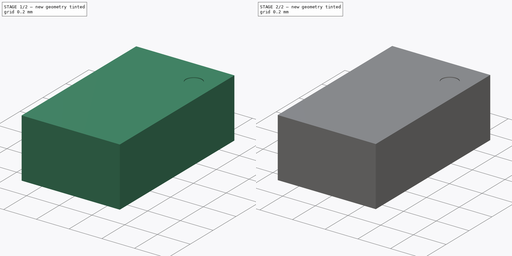
[diagram: build sequence overview — one tinted view per stage of 2, left to right]
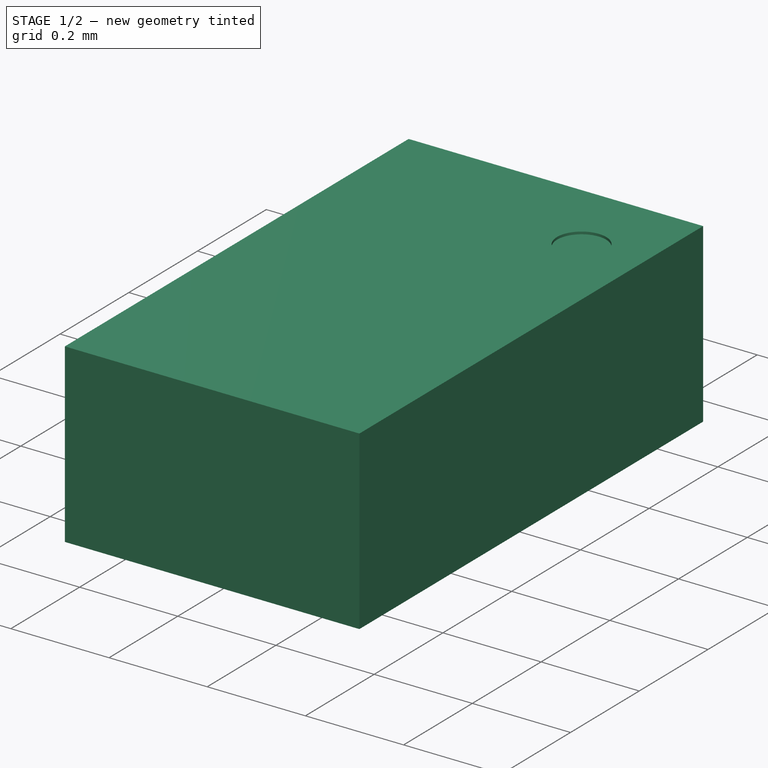
[diagram: stage 1 of 2 — iso view after this stage's code; geometry added in this stage tinted green]
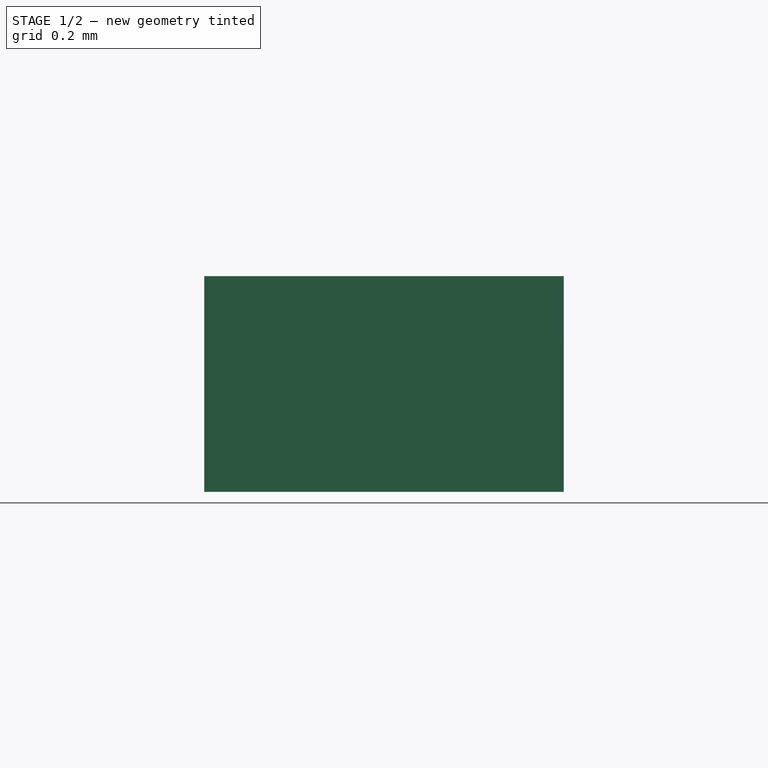
[diagram: stage 1 of 2 — front view after this stage's code; geometry added in this stage tinted green]
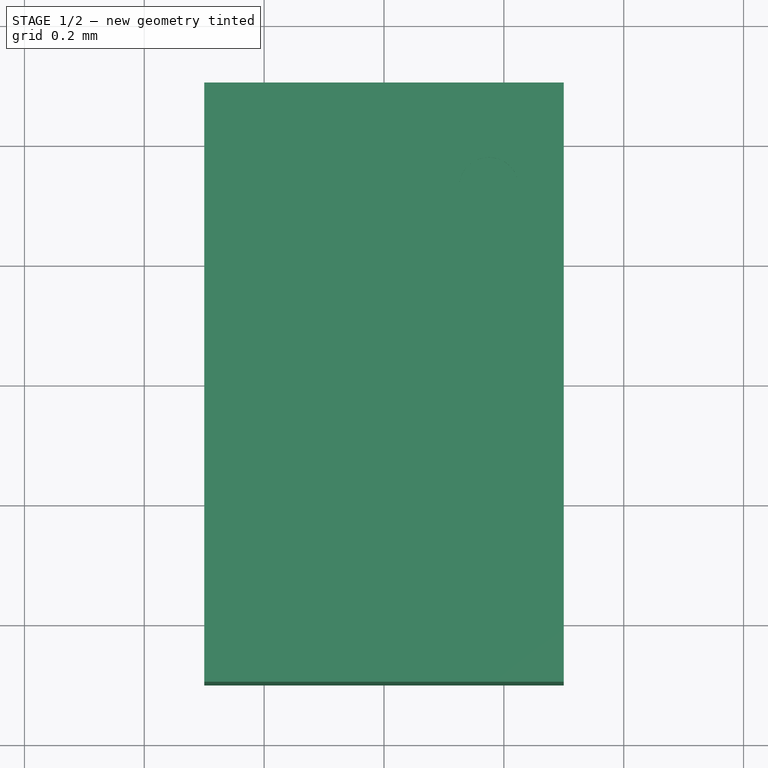
[diagram: stage 1 of 2 — top view after this stage's code; geometry added in this stage tinted green]
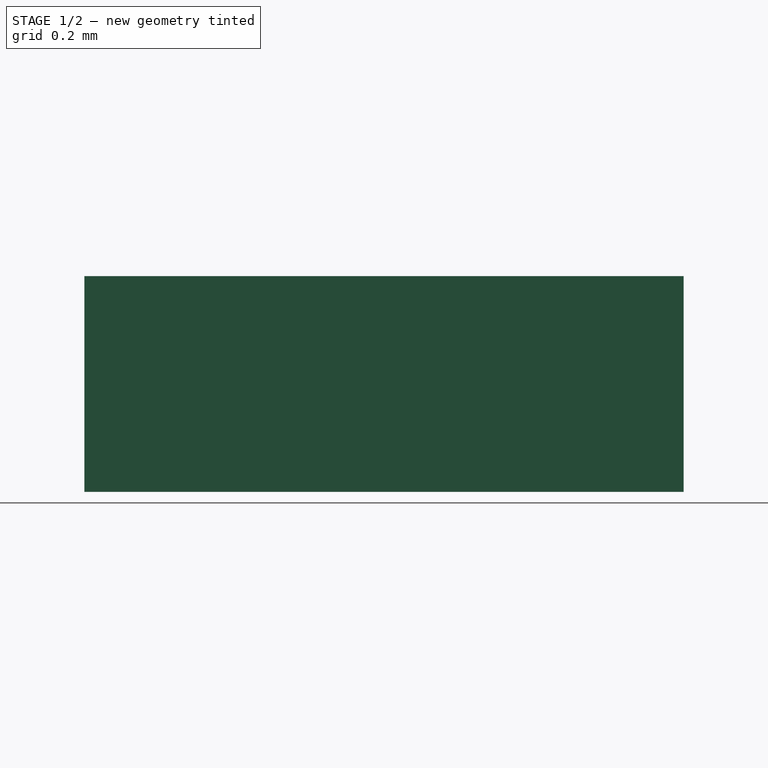
[diagram: stage 1 of 2 — right view after this stage's code; geometry added in this stage tinted green]
FCSTD DOCUMENT  (FreeCAD 0.20R29603 (Git))
Label: XFDFN-3
License: All rights reserved
LicenseURL: http://en.wikipedia.org/wiki/All_rights_reserved
objects: Sketcher::SketchObject×3, PartDesign::Pad×2, PartDesign::Pocket×1, PartDesign::Body×1
note: 10 computed .brp shape members not serialized (recipe doc carries the construction recipe); baked Part::Feature solids carry a one-line shape summary decoded from their .brp

FEATURE [Sketcher::SketchObject] Sketch
  FullyConstrained = true
  MapMode = 5
  Support = -> [XY_Plane]
  sketch-geometry (5):
    g0: LineSegment StartX=-0.3 StartY=0.5 StartZ=0 EndX=-0.3 EndY=-0.5 EndZ=0
    g1: LineSegment StartX=-0.3 StartY=-0.5 StartZ=0 EndX=0.3 EndY=-0.5 EndZ=0
    g2: LineSegment StartX=0.3 StartY=-0.5 StartZ=0 EndX=0.3 EndY=0.5 EndZ=0
    g3: LineSegment StartX=0.3 StartY=0.5 StartZ=0 EndX=-0.3 EndY=0.5 EndZ=0
    g4: GeomPoint X=0 Y=0 Z=0
  constraints (12):
    c: Coincident(g0,g1)
    c: Coincident(g1,g2)
    c: Coincident(g2,g3)
    c: Coincident(g3,g0)
    c: Horizontal(g1)
    c: Horizontal(g3)
    c: Vertical(g0)
    c: Vertical(g2)
    c: Symmetric(g1,g0,g4)
    c: Coincident(g4,g-1)
    c: DistanceX(g3,g3) = 0.6
    c: DistanceY(g0,g0) = 1
FEATURE [PartDesign::Pad] Pad
  Direction = (0,0,1)
  Length = 0.36
  Length2 = 10
  Profile = -> Sketch
  ReferenceAxis = -> Sketch [N_Axis]
  Type = 0
FEATURE [Sketcher::SketchObject] Sketch001
  FullyConstrained = true
  MapMode = 5
  Placement = pos=(0,0,0.36) rot=(0,0,1;0rad)
  Support = -> [Pad]
  sketch-geometry (1):
    g0: Circle CenterX=0.175 CenterY=0.325 CenterZ=0 NormalX=0 NormalY=0 NormalZ=1 AngleXU=0 Radius=0.05
  constraints (3):
    c: DistanceX(g-1,g0) = 0.175
    c: DistanceY(g-1,g0) = 0.325
    c: Radius(g0) = 0.05
FEATURE [PartDesign::Pocket] Pocket
  BaseFeature = -> Pad
  Direction = (0,0,-1)
  Length = 0.005
  Length2 = 5
  Profile = -> Sketch001
  ReferenceAxis = -> Sketch001 [N_Axis]
  Type = 0
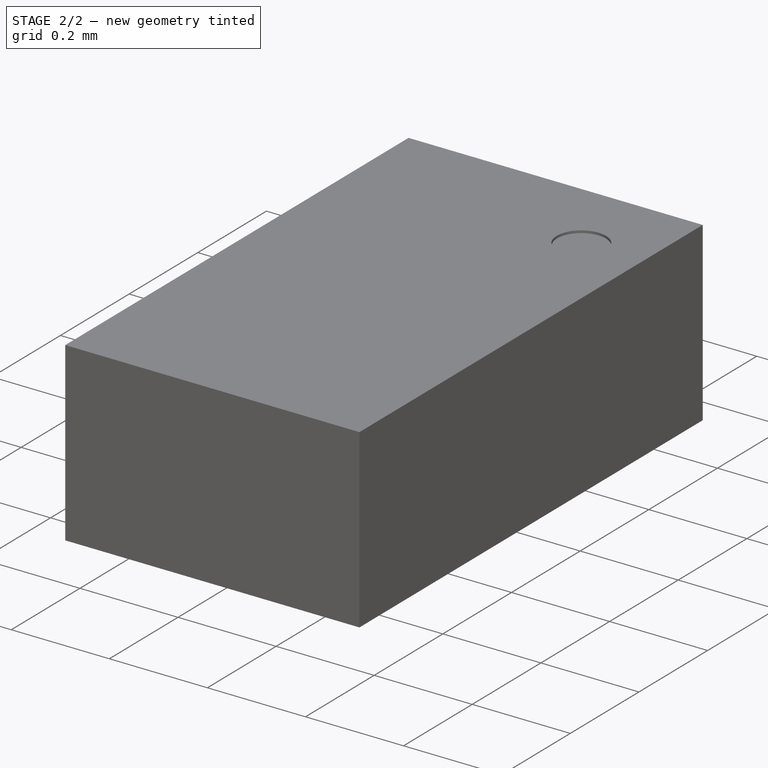
[diagram: stage 2 of 2 — iso view after this stage's code; geometry added in this stage tinted green]
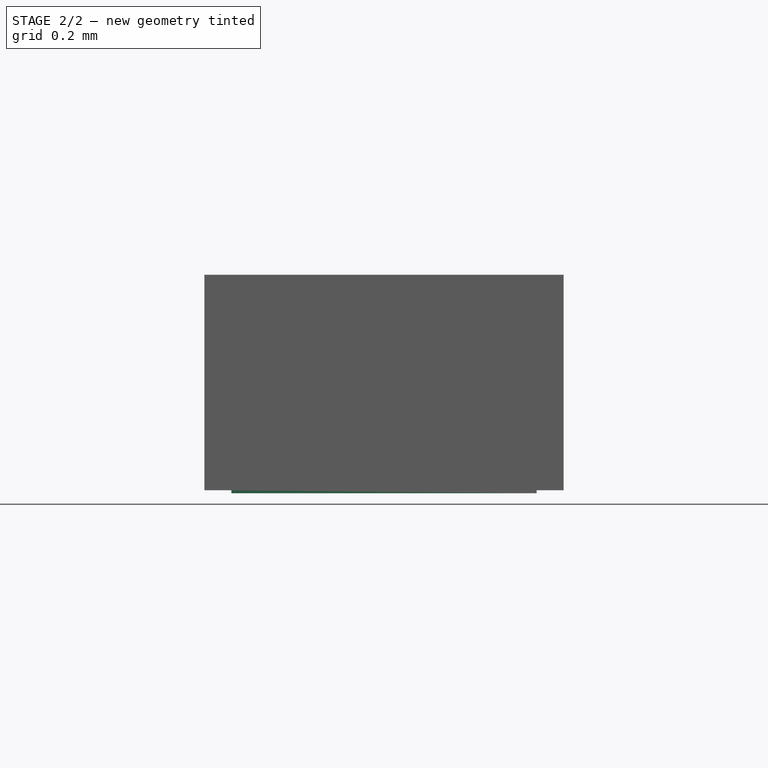
[diagram: stage 2 of 2 — front view after this stage's code; geometry added in this stage tinted green]
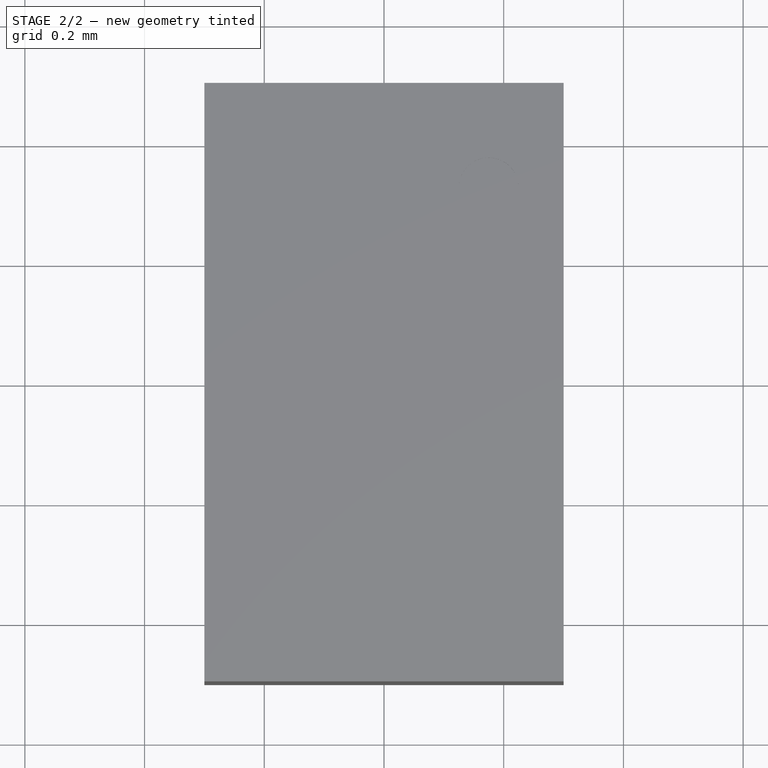
[diagram: stage 2 of 2 — top view after this stage's code; geometry added in this stage tinted green]
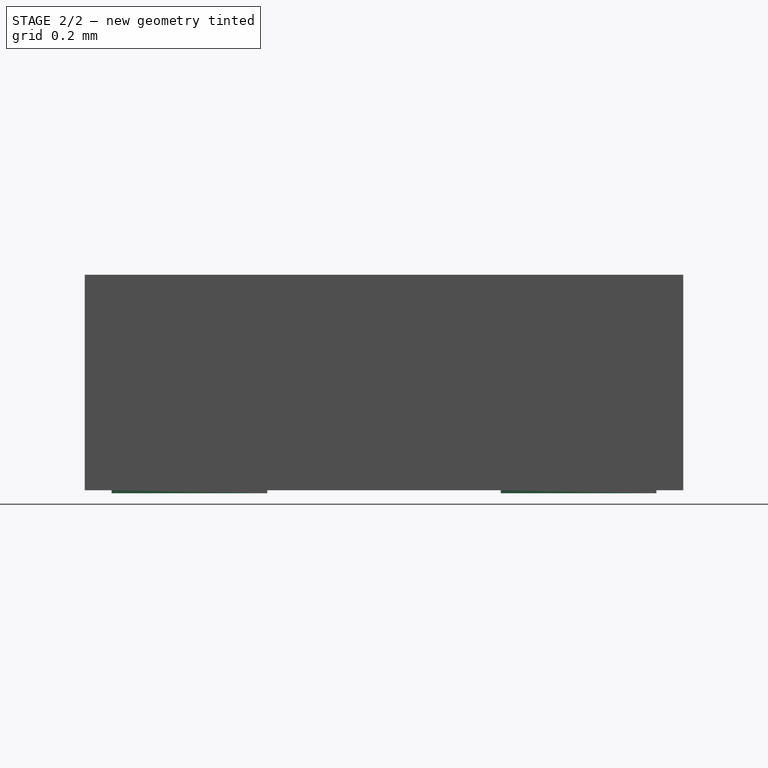
[diagram: stage 2 of 2 — right view after this stage's code; geometry added in this stage tinted green]
FEATURE [Sketcher::SketchObject] Sketch002
  FullyConstrained = true
  MapMode = 5
  Placement = pos=(0,0,0) rot=(1,0,0;3.14159rad)
  Support = -> [Pocket]
  sketch-geometry (15):
    g0: LineSegment StartX=0.255 StartY=-0.455 StartZ=0 EndX=0.255 EndY=-0.195 EndZ=0
    g1: LineSegment StartX=0.255 StartY=-0.195 StartZ=0 EndX=0.095 EndY=-0.195 EndZ=0
    g2: LineSegment StartX=0.095 StartY=-0.195 StartZ=0 EndX=0.095 EndY=-0.455 EndZ=0
    g3: LineSegment StartX=0.095 StartY=-0.455 StartZ=0 EndX=0.255 EndY=-0.455 EndZ=0
    g4: GeomPoint X=0.175 Y=-0.325 Z=0
    g5: LineSegment StartX=0.255 StartY=0.195 StartZ=0 EndX=0.255 EndY=0.455 EndZ=0
    g6: LineSegment StartX=0.255 StartY=0.455 StartZ=0 EndX=-0.255 EndY=0.455 EndZ=0
    g7: LineSegment StartX=-0.255 StartY=0.455 StartZ=0 EndX=-0.255 EndY=0.195 EndZ=0
    g8: LineSegment StartX=-0.255 StartY=0.195 StartZ=0 EndX=0.255 EndY=0.195 EndZ=0
    g9: GeomPoint X=0 Y=0.325 Z=0
    g10: LineSegment StartX=-0.255 StartY=-0.455 StartZ=0 EndX=-0.255 EndY=-0.195 EndZ=0
    g11: LineSegment StartX=-0.255 StartY=-0.195 StartZ=0 EndX=-0.095 EndY=-0.195 EndZ=0
    g12: LineSegment StartX=-0.095 StartY=-0.195 StartZ=0 EndX=-0.095 EndY=-0.455 EndZ=0
    g13: LineSegment StartX=-0.095 StartY=-0.455 StartZ=0 EndX=-0.255 EndY=-0.455 EndZ=0
    g14: GeomPoint X=-0.175 Y=-0.325 Z=0
  constraints (38):
    c: Coincident(g0,g1)
    c: Coincident(g1,g2)
    c: Coincident(g2,g3)
    c: Coincident(g3,g0)
    c: Horizontal(g1)
    c: Horizontal(g3)
    c: Vertical(g0)
    c: Vertical(g2)
    c: Symmetric(g1,g0,g4)
    c: Coincident(g5,g6)
    c: Coincident(g6,g7)
    c: Coincident(g7,g8)
    c: Coincident(g8,g5)
    c: Horizontal(g6)
    c: Horizontal(g8)
    c: Vertical(g5)
    c: Vertical(g7)
    c: Symmetric(g6,g5,g9)
    c: DistanceX(g-1,g4) = 0.175
    c: DistanceX(g3,g3) = 0.16
    c: PointOnObject(g9,g-2)
    c: DistanceY(g-1,g9) = 0.325
    c: DistanceX(g8,g8) = 0.51
    c: DistanceY(g5,g5) = 0.26
    c: DistanceY(g0,g0) = 0.26
    c: Coincident(g10,g11)
    c: Coincident(g11,g12)
    c: Coincident(g12,g13)
    c: Coincident(g13,g10)
    c: Horizontal(g11)
    c: Horizontal(g13)
    c: Vertical(g10)
    c: Vertical(g12)
    c: Symmetric(g11,g10,g14)
    c: Equal(g10,g2)
    c: Equal(g11,g1)
    c: DistanceY(g4,g-1) = 0.325
    c: Symmetric(g14,g4,g-2)
FEATURE [PartDesign::Pad] Pad001
  BaseFeature = -> Pocket
  Direction = (0,0,-1)
  Length = 0.005
  Length2 = 10
  Profile = -> Sketch002
  ReferenceAxis = -> Sketch002 [N_Axis]
  Type = 0
FEATURE [PartDesign::Body] Body
  Group = -> [Sketch,Pad,Sketch001,Pocket,Sketch002,Pad001]
  Origin = -> Origin
  Tip = -> Pad001
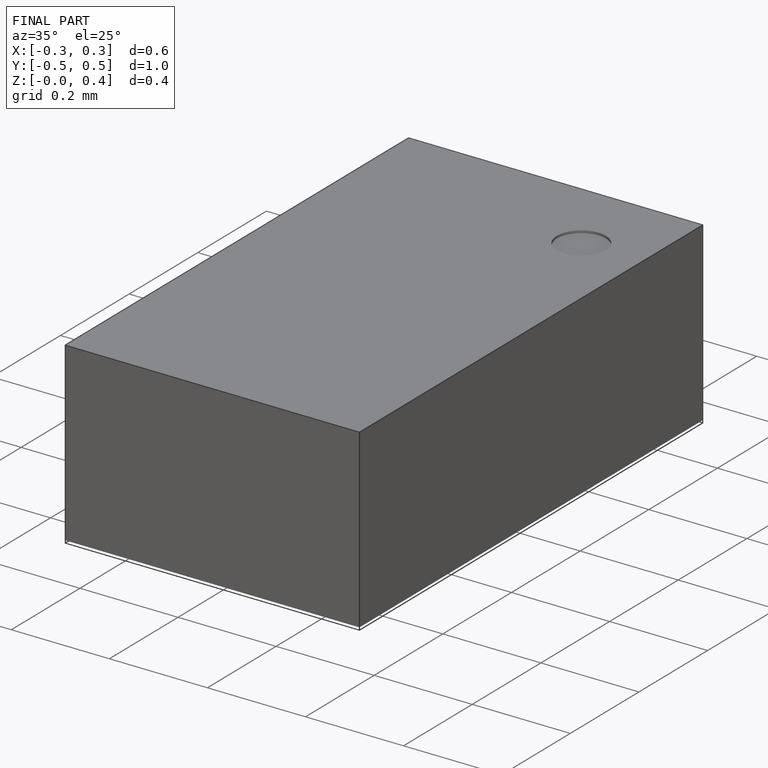
[diagram: finished part — iso view with bounding-box wireframe]
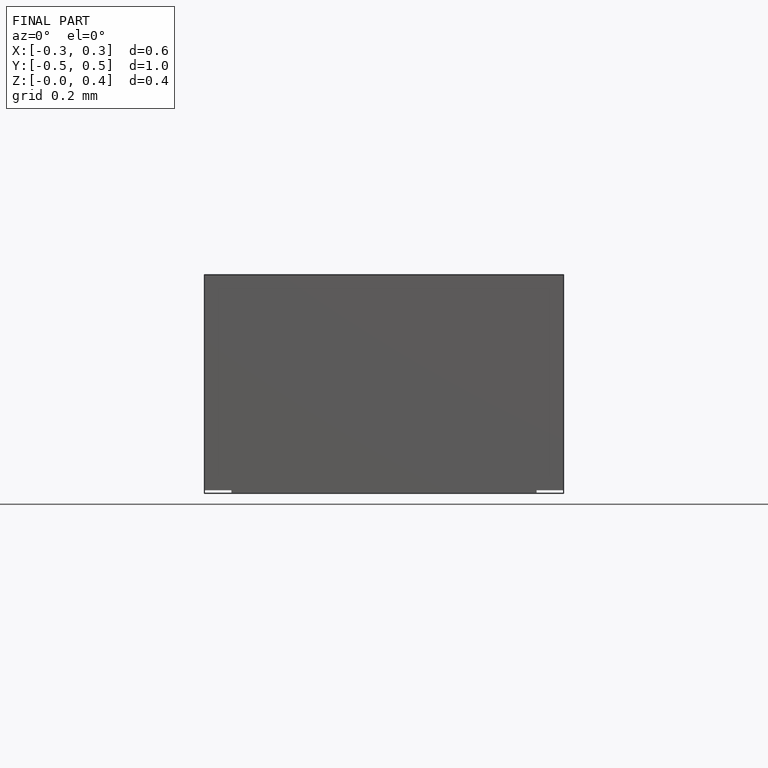
[diagram: finished part — front view with bounding-box wireframe]
